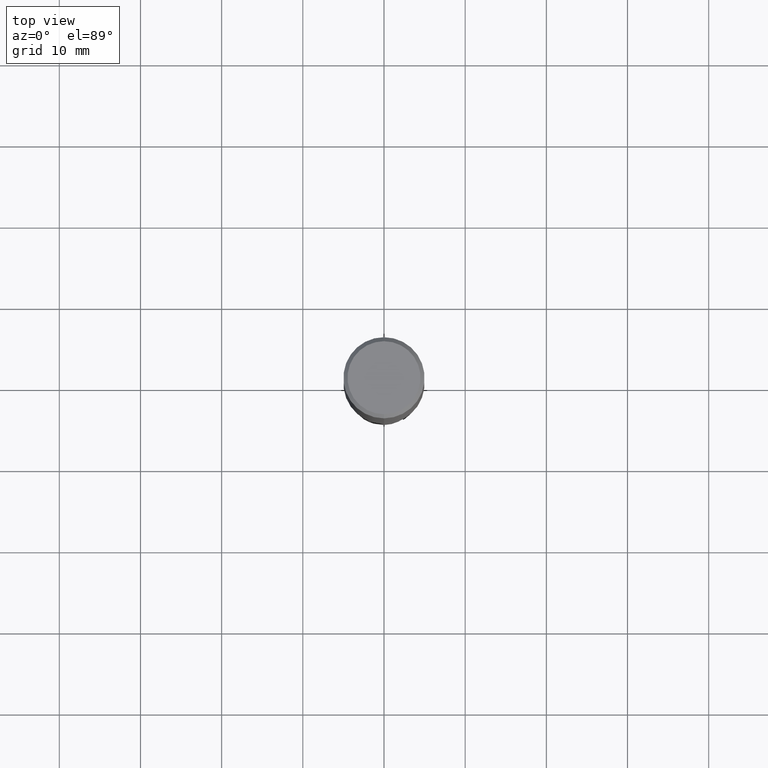
[diagram: clean part render]
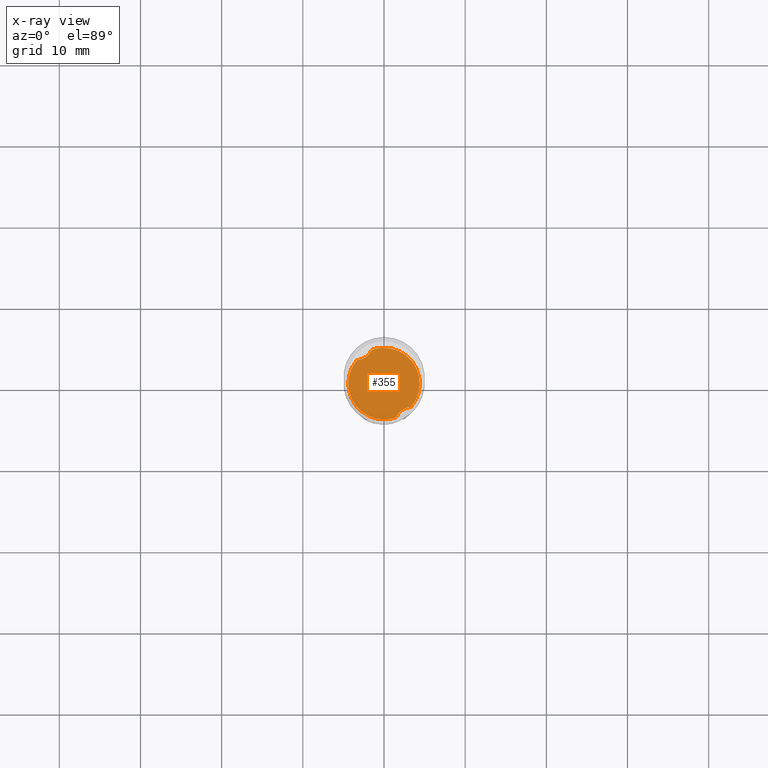
[diagram: x-ray — body ghosted, one internal face saturated and labeled with its STEP entity id]
A machine part, top view, then the same camera in x-ray: the body is ghosted and one INTERNAL B-rep face — a face not visible from any outside direction — is saturated and labeled: STEP entity #355.
In plain terms, the highlighted planar face has unit normal (-0, 0, 1).
Its self-contained STEP definition (entity closure, byte-faithful):
#303=EDGE_CURVE('',#549,#583,#798,.T.);
#327=VERTEX_POINT('',#823);
#355=ADVANCED_FACE('',(#854),#855,.T.);
#369=EDGE_CURVE('',#327,#635,#870,.T.);
#393=EDGE_CURVE('',#491,#583,#897,.T.);
#399=EDGE_CURVE('',#327,#491,#903,.T.);
#445=EDGE_CURVE('',#549,#641,#954,.T.);
#491=VERTEX_POINT('',#1002);
#549=VERTEX_POINT('',#1064);
#577=EDGE_CURVE('',#641,#635,#1093,.T.);
#583=VERTEX_POINT('',#1100);
#635=VERTEX_POINT('',#1156);
#641=VERTEX_POINT('',#1163);
#798=B_SPLINE_CURVE_WITH_KNOTS('',3,(#1494,#1495,#1496,#1497,#1498,#1499,#1500,#1501,#1502,#1503,#1504,#1505),.UNSPECIFIED.,.F.,.F.,(4,2,2,2,2,4),(0.0,0.956282617624597,1.83005544775623,2.71079653608657,3.25686361524105,3.82634129944121),.UNSPECIFIED.);
#823=CARTESIAN_POINT('',(-1.49956764850811,4.13647396674364,-42.0));
#854=FACE_OUTER_BOUND('',#1721,.T.);
#855=PLANE('',#1722);
#870=B_SPLINE_CURVE_WITH_KNOTS('',3,(#1849,#1850,#1851,#1852,#1853,#1854,#1855,#1856,#1857,#1858,#1859,#1860),.UNSPECIFIED.,.F.,.F.,(4,2,2,2,2,4),(0.0,0.95628261762468,1.83005544775629,2.71079653608656,3.25686361524105,3.82634129944145),.UNSPECIFIED.);
#897=CIRCLE('',#2589,4.3999);
#903=CIRCLE('',#2605,4.3999);
#954=CIRCLE('',#2970,4.3999);
#1002=CARTESIAN_POINT('',(-5.38595886303557E-016,4.3999,-42.0));
#1064=CARTESIAN_POINT('',(1.4995676485081,-4.13647396674364,-42.0));
#1093=CIRCLE('',#3898,4.3999);
#1100=CARTESIAN_POINT('',(3.33358693144173,-2.87164032924058,-42.0));
#1156=CARTESIAN_POINT('',(-3.33358693144172,2.87164032924058,-42.0));
#1163=CARTESIAN_POINT('',(5.38606711119224E-016,-4.3999,-42.0));
#1494=CARTESIAN_POINT('',(1.37240712519495,-4.4499,-42.0));
#1495=CARTESIAN_POINT('',(1.47261664998567,-4.14730035524698,-42.0));
#1496=CARTESIAN_POINT('',(1.62600246707384,-3.86735149607129,-41.9999999999875));
#1497=CARTESIAN_POINT('',(2.0249823032993,-3.40766107195267,-41.9999999999875));
#1498=CARTESIAN_POINT('',(2.25462145756228,-3.22950054938286,-42.0000000000007));
#1499=CARTESIAN_POINT('',(2.77705059324489,-2.97004095884365,-42.0000000000007));
#1500=CARTESIAN_POINT('',(3.06097264737726,-2.89411186290925,-42.0000000000001));
#1501=CARTESIAN_POINT('',(3.53426626722658,-2.85496235740067,-42.0000000000001));
#1502=CARTESIAN_POINT('',(3.71643629393764,-2.86004288335262,-42.0));
#1503=CARTESIAN_POINT('',(4.08487847230587,-2.90729210649029,-42.0));
#1504=CARTESIAN_POINT('',(4.27006535935376,-2.95091103145618,-42.0));
#1505=CARTESIAN_POINT('',(4.4499,-3.01132854258824,-42.0));
#1721=EDGE_LOOP('',(#5344,#5345,#5346,#5347,#5348,#5349));
#1722=AXIS2_PLACEMENT_3D('',#5350,#5351,#5352);
#1849=CARTESIAN_POINT('',(-1.37240712519494,4.4499,-42.0));
#1850=CARTESIAN_POINT('',(-1.47261664998568,4.14730035524695,-42.0));
#1851=CARTESIAN_POINT('',(-1.62600246707385,3.86735149607128,-41.9999999999875));
#1852=CARTESIAN_POINT('',(-2.02498230329928,3.40766107195271,-41.9999999999875));
#1853=CARTESIAN_POINT('',(-2.25462145756226,3.22950054938287,-42.0000000000007));
#1854=CARTESIAN_POINT('',(-2.77705059324489,2.97004095884365,-42.0000000000007));
#1855=CARTESIAN_POINT('',(-3.06097264737727,2.89411186290925,-42.0000000000001));
#1856=CARTESIAN_POINT('',(-3.53426626722661,2.85496235740067,-42.0000000000001));
#1857=CARTESIAN_POINT('',(-3.71643629393769,2.86004288335264,-42.0));
#1858=CARTESIAN_POINT('',(-4.0848784723059,2.9072921064903,-42.0));
#1859=CARTESIAN_POINT('',(-4.27006535935382,2.95091103145621,-42.0));
#1860=CARTESIAN_POINT('',(-4.4499,3.01132854258825,-42.0));
#2589=AXIS2_PLACEMENT_3D('',#5402,#5403,#5404);
#2605=AXIS2_PLACEMENT_3D('',#5408,#5409,#5410);
#2970=AXIS2_PLACEMENT_3D('',#5490,#5491,#5492);
#3898=AXIS2_PLACEMENT_3D('',#5594,#5595,#5596);
#5344=ORIENTED_EDGE('',*,*,#303,.T.);
#5345=ORIENTED_EDGE('',*,*,#393,.F.);
#5346=ORIENTED_EDGE('',*,*,#399,.F.);
#5347=ORIENTED_EDGE('',*,*,#369,.T.);
#5348=ORIENTED_EDGE('',*,*,#577,.F.);
#5349=ORIENTED_EDGE('',*,*,#445,.F.);
#5350=CARTESIAN_POINT('',(0.0,2.19995,-42.0));
#5351=DIRECTION('',(-0.0,0.0,1.0));
#5352=DIRECTION('',(0.0,-1.0,0.0));
#5402=CARTESIAN_POINT('',(0.0,0.0,-42.0));
#5403=DIRECTION('',(0.0,0.0,-1.0));
#5404=DIRECTION('',(0.0,1.0,0.0));
#5408=CARTESIAN_POINT('',(0.0,0.0,-42.0));
#5409=DIRECTION('',(0.0,0.0,-1.0));
#5410=DIRECTION('',(0.0,1.0,0.0));
#5490=CARTESIAN_POINT('',(0.0,0.0,-42.0));
#5491=DIRECTION('',(0.0,0.0,-1.0));
#5492=DIRECTION('',(0.0,1.0,0.0));
#5594=CARTESIAN_POINT('',(0.0,0.0,-42.0));
#5595=DIRECTION('',(0.0,0.0,-1.0));
#5596=DIRECTION('',(0.0,1.0,0.0));